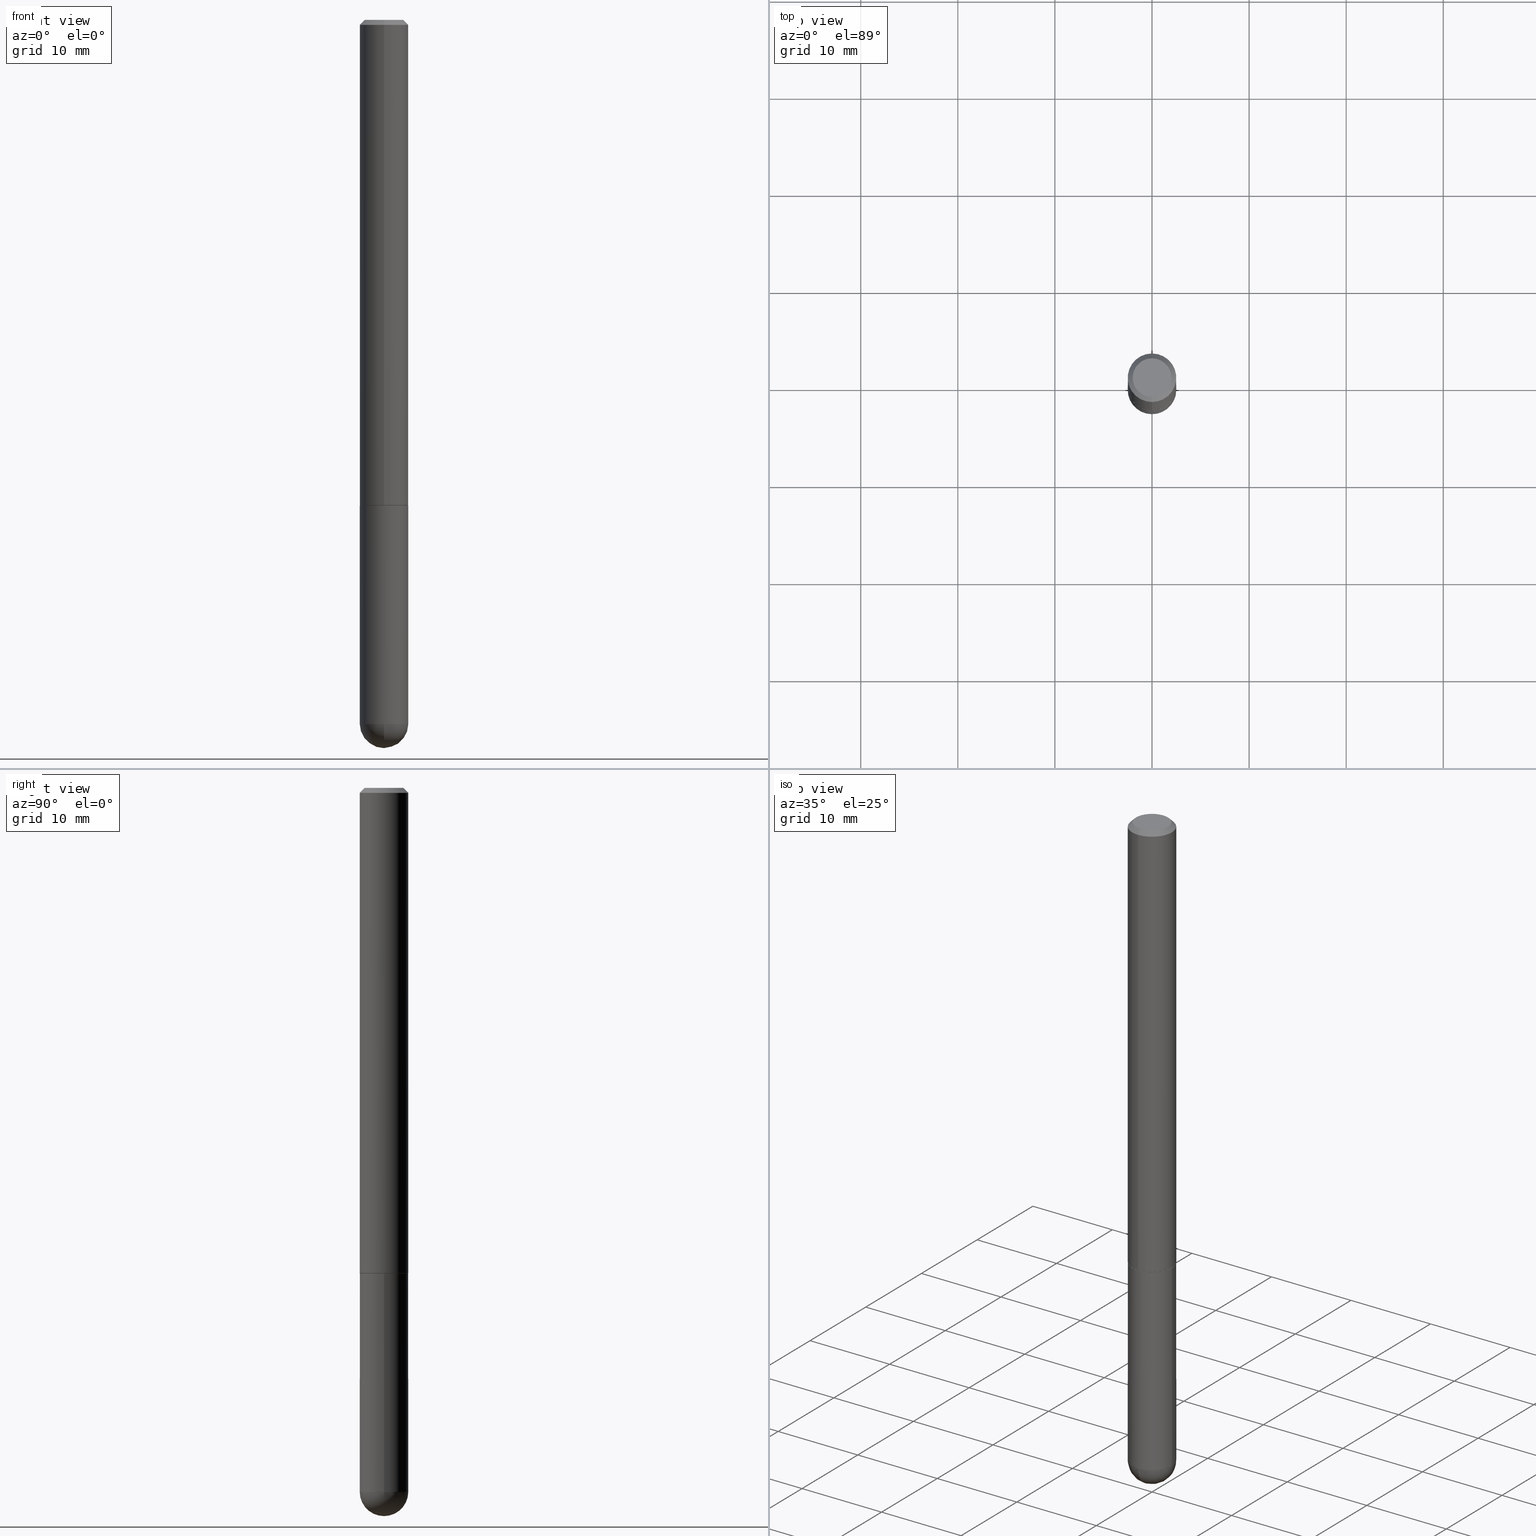
[diagram: canonical four-view strip — front | top / right | iso, engineering-drawing reading convention]
A machine part, canonical four-view strip (front | top / right | iso — engineering-drawing reading convention). The complete STEP part file that produces these views, byte-faithful:
ISO-10303-21;
HEADER;
FILE_DESCRIPTION (( 'STEP AP203' ),
    '1' );
FILE_NAME ('49508.STEP',
    '2024-04-10T12:10:27',
    ( '' ),
    ( '' ),
    'SwSTEP 2.0',
    'SolidWorks 2023',
    '' );
FILE_SCHEMA (( 'CONFIG_CONTROL_DESIGN' ));
ENDSEC;

DATA;
#1 = DIRECTION ( 'NONE',  ( 1.000000000000000000, -6.982962677686265922E-15, 0.000000000000000000 ) ) ;
#2 = AXIS2_PLACEMENT_3D ( 'NONE', #328, #44, #176 ) ;
#3 = EDGE_CURVE ( 'NONE', #319, #5, #100, .T. ) ;
#4 = PRODUCT ( '49508', '49508', '', ( #183 ) ) ;
#5 = VERTEX_POINT ( 'NONE', #138 ) ;
#6 = FACE_OUTER_BOUND ( 'NONE', #373, .T. ) ;
#7 = ORIENTED_EDGE ( 'NONE', *, *, #412, .T. ) ;
#8 = CIRCLE ( 'NONE', #395, 0.09844999999999998197 ) ;
#9 = CC_DESIGN_APPROVAL ( #259, ( #240 ) ) ;
#10 = ADVANCED_FACE ( 'NONE', ( #11 ), #140, .F. ) ;
#11 = FACE_OUTER_BOUND ( 'NONE', #325, .T. ) ;
#12 = LINE ( 'NONE', #142, #255 ) ;
#13 = APPLICATION_CONTEXT ( 'configuration controlled 3d designs of mechanical parts and assemblies' ) ;
#14 = LINE ( 'NONE', #232, #374 ) ;
#15 = ORIENTED_EDGE ( 'NONE', *, *, #156, .T. ) ;
#16 = DIRECTION ( 'NONE',  ( -4.851104656540958753E-15, -0.7071067811865492381, -0.7071067811865457964 ) ) ;
#17 = APPROVAL_ROLE ( '' ) ;
#18 = AXIS2_PLACEMENT_3D ( 'NONE', #332, #50, #297 ) ;
#19 = AXIS2_PLACEMENT_3D ( 'NONE', #347, #63, #199 ) ;
#20 = DIRECTION ( 'NONE',  ( -6.982962677686265922E-15, -1.000000000000000000, 3.476423852899335483E-15 ) ) ;
#21 = CALENDAR_DATE ( 2024, 10, 4 ) ;
#22 = DIRECTION ( 'NONE',  ( 2.455983392421677748E-29, -3.476423852899335483E-15, -1.000000000000000000 ) ) ;
#23 = VERTEX_POINT ( 'NONE', #264 ) ;
#24 = AXIS2_PLACEMENT_3D ( 'NONE', #277, #126, #246 ) ;
#25 = VERTEX_POINT ( 'NONE', #204 ) ;
#26 = DIRECTION ( 'NONE',  ( -2.455983392421677748E-29, 3.476423852899335483E-15, 1.000000000000000000 ) ) ;
#27 = FACE_OUTER_BOUND ( 'NONE', #179, .T. ) ;
#28 = CC_DESIGN_DATE_AND_TIME_ASSIGNMENT ( #378, #163, ( #104 ) ) ;
#29 = ORIENTED_EDGE ( 'NONE', *, *, #285, .T. ) ;
#30 = SHAPE_DEFINITION_REPRESENTATION ( #290, #198 ) ;
#31 = VERTEX_POINT ( 'NONE', #361 ) ;
#32 = APPROVAL_STATUS ( 'not_yet_approved' ) ;
#33 = ORIENTED_EDGE ( 'NONE', *, *, #203, .F. ) ;
#34 = CARTESIAN_POINT ( 'NONE',  ( 4.813905344975440714E-29, -6.872981015512730918E-15, -1.968499999999999694 ) ) ;
#35 = EDGE_LOOP ( 'NONE', ( #114, #354, #62, #194 ) ) ;
#36 = PERSON_AND_ORGANIZATION_ROLE ( 'creator' ) ;
#37 = CC_DESIGN_PERSON_AND_ORGANIZATION_ASSIGNMENT ( #159, #253, ( #46 ) ) ;
#38 = VERTEX_POINT ( 'NONE', #391 ) ;
#39 = AXIS2_PLACEMENT_3D ( 'NONE', #157, #123, #400 ) ;
#40 = LOCAL_TIME ( 8, 10, 27.00000000000000000, #146 ) ;
#41 = DIRECTION ( 'NONE',  ( -2.455983392421678028E-29, 3.476423852899335089E-15, 1.000000000000000000 ) ) ;
#42 = EDGE_CURVE ( 'NONE', #210, #241, #254, .T. ) ;
#43 = DIRECTION ( 'NONE',  ( -6.982962677686265133E-15, -1.000000000000000000, 3.468572871589974153E-15 ) ) ;
#44 = DIRECTION ( 'NONE',  ( 2.438088387897960049E-29, -3.491481338843145188E-15, -1.000000000000000000 ) ) ;
#45 = AXIS2_PLACEMENT_3D ( 'NONE', #291, #231, #358 ) ;
#46 = PRODUCT_DEFINITION_FORMATION_WITH_SPECIFIED_SOURCE ( 'ANY', '', #4, .NOT_KNOWN. ) ;
#47 = CARTESIAN_POINT ( 'NONE',  ( 4.834603307982072129E-29, -6.843340354432340841E-15, -1.968499999999999694 ) ) ;
#48 = DIRECTION ( 'NONE',  ( -6.982962677686266711E-15, -1.000000000000000000, 2.803332984776053820E-15 ) ) ;
#49 = APPROVAL_STATUS ( 'not_yet_approved' ) ;
#50 = DIRECTION ( 'NONE',  ( -2.455983392421677748E-29, 3.476423852899335483E-15, 1.000000000000000000 ) ) ;
#51 = CARTESIAN_POINT ( 'NONE',  ( -0.09844999999999999585, -7.719916064164011895E-15, -1.968499999999999694 ) ) ;
#52 = CIRCLE ( 'NONE', #109, 0.09844999999999998197 ) ;
#53 = DIRECTION ( 'NONE',  ( -6.982962677686266711E-15, -1.000000000000000000, 2.803332984776053820E-15 ) ) ;
#54 = EDGE_LOOP ( 'NONE', ( #227, #359, #222, #160 ) ) ;
#55 = DIRECTION ( 'NONE',  ( -7.105427357601001070E-15, -1.000000000000000000, 0.000000000000000000 ) ) ;
#56 = EDGE_CURVE ( 'NONE', #25, #144, #327, .T. ) ;
#57 = EDGE_CURVE ( 'NONE', #25, #319, #286, .T. ) ;
#58 = DIRECTION ( 'NONE',  ( -2.455983392421677748E-29, 3.476423852899335483E-15, 1.000000000000000000 ) ) ;
#59 = VECTOR ( 'NONE', #41, 39.37007874015748143 ) ;
#60 = AXIS2_PLACEMENT_3D ( 'NONE', #392, #214, #55 ) ;
#61 = PERSON_AND_ORGANIZATION ( #299, #262 ) ;
#62 = ORIENTED_EDGE ( 'NONE', *, *, #57, .F. ) ;
#63 = DIRECTION ( 'NONE',  ( -1.000000000000000000, 6.982962677686265922E-15, -4.883557194083112340E-29 ) ) ;
#64 = DATE_AND_TIME ( #158, #258 ) ;
#65 = ORIENTED_EDGE ( 'NONE', *, *, #289, .F. ) ;
#66 = PERSON_AND_ORGANIZATION_ROLE ( 'classification_officer' ) ;
#67 = DIRECTION ( 'NONE',  ( -2.455983392421677748E-29, 3.476423852899335483E-15, 1.000000000000000000 ) ) ;
#68 = ORIENTED_EDGE ( 'NONE', *, *, #292, .F. ) ;
#69 = APPROVAL ( #49, 'UNSPECIFIED' ) ;
#70 = AXIS2_PLACEMENT_3D ( 'NONE', #321, #167, #106 ) ;
#71 = EDGE_CURVE ( 'NONE', #23, #144, #14, .T. ) ;
#72 = CARTESIAN_POINT ( 'NONE',  ( 4.911966784843361661E-31, -6.952847705798678460E-17, -0.02000000000000002470 ) ) ;
#73 = DIRECTION ( 'NONE',  ( -2.445468806185136597E-29, 3.491481338843145583E-15, 1.000000000000000000 ) ) ;
#74 = FACE_OUTER_BOUND ( 'NONE', #162, .T. ) ;
#75 = ADVANCED_FACE ( 'NONE', ( #267 ), #113, .T. ) ;
#76 = CARTESIAN_POINT ( 'NONE',  ( -6.874726756182134475E-16, -0.09845000000000007911, 3.422539283179398691E-16 ) ) ;
#77 = AXIS2_PLACEMENT_3D ( 'NONE', #306, #22, #90 ) ;
#78 = ORIENTED_EDGE ( 'NONE', *, *, #250, .F. ) ;
#79 = APPROVAL_PERSON_ORGANIZATION ( #220, #259, #191 ) ;
#80 = FACE_OUTER_BOUND ( 'NONE', #54, .T. ) ;
#81 = CARTESIAN_POINT ( 'NONE',  ( 0.000000000000000000, 0.000000000000000000, 0.000000000000000000 ) ) ;
#82 = CARTESIAN_POINT ( 'NONE',  ( 6.874726756182131517E-16, 0.09844999999999991258, -0.02000000000000036818 ) ) ;
#83 = ORIENTED_EDGE ( 'NONE', *, *, #42, .F. ) ;
#84 = CARTESIAN_POINT ( 'NONE',  ( 6.894070069048070960E-29, -1.077780014160728605E-14, -2.952799999999999869 ) ) ;
#85 = DIRECTION ( 'NONE',  ( -6.982962677686265133E-15, -1.000000000000000000, 2.774858297271973248E-15 ) ) ;
#86 = DIRECTION ( 'NONE',  ( 1.000000000000000000, -6.982962677686265922E-15, 4.883557194083112340E-29 ) ) ;
#87 = ADVANCED_FACE ( 'NONE', ( #80 ), #404, .T. ) ;
#88 = PRODUCT_RELATED_PRODUCT_CATEGORY ( 'detail', '', ( #4 ) ) ;
#89 = ORIENTED_EDGE ( 'NONE', *, *, #322, .F. ) ;
#90 = DIRECTION ( 'NONE',  ( 6.982962677686265133E-15, 1.000000000000000000, -3.468572871589974153E-15 ) ) ;
#91 = DIRECTION ( 'NONE',  ( 6.982962677686266711E-15, 1.000000000000000000, 0.000000000000000000 ) ) ;
#92 = ORIENTED_EDGE ( 'NONE', *, *, #407, .F. ) ;
#93 = SPHERICAL_SURFACE ( 'NONE', #19, 0.09845000000000030116 ) ;
#94 = CALENDAR_DATE ( 2024, 10, 4 ) ;
#95 = FACE_OUTER_BOUND ( 'NONE', #293, .T. ) ;
#96 = CC_DESIGN_PERSON_AND_ORGANIZATION_ASSIGNMENT ( #317, #36, ( #104 ) ) ;
#97 = APPROVAL_ROLE ( '' ) ;
#98 = ORIENTED_EDGE ( 'NONE', *, *, #407, .T. ) ;
#99 = ORIENTED_EDGE ( 'NONE', *, *, #168, .T. ) ;
#100 = LINE ( 'NONE', #229, #294 ) ;
#101 = CIRCLE ( 'NONE', #281, 0.09844999999999999585 ) ;
#102 = EDGE_CURVE ( 'NONE', #38, #25, #108, .T. ) ;
#103 = EDGE_LOOP ( 'NONE', ( #326, #105, #226, #218 ) ) ;
#104 = PRODUCT_DEFINITION ( 'UNKNOWN', '', #46, #221 ) ;
#105 = ORIENTED_EDGE ( 'NONE', *, *, #223, .T. ) ;
#106 = DIRECTION ( 'NONE',  ( -6.982962677686265133E-15, -1.000000000000000000, 3.468572871589974153E-15 ) ) ;
#107 = ADVANCED_FACE ( 'NONE', ( #304 ), #208, .T. ) ;
#108 = LINE ( 'NONE', #180, #131 ) ;
#109 = AXIS2_PLACEMENT_3D ( 'NONE', #72, #387, #43 ) ;
#110 = CC_DESIGN_PERSON_AND_ORGANIZATION_ASSIGNMENT ( #375, #66, ( #240 ) ) ;
#111 = CARTESIAN_POINT ( 'NONE',  ( 6.980223886934544207E-29, -9.965909759526929881E-15, -2.854349999999999721 ) ) ;
#112 = ORIENTED_EDGE ( 'NONE', *, *, #285, .F. ) ;
#113 = CYLINDRICAL_SURFACE ( 'NONE', #184, 0.09844999999999998197 ) ;
#114 = ORIENTED_EDGE ( 'NONE', *, *, #172, .T. ) ;
#115 = DIRECTION ( 'NONE',  ( -2.455983392421677748E-29, 3.476423852899335089E-15, 1.000000000000000000 ) ) ;
#116 = ORIENTED_EDGE ( 'NONE', *, *, #122, .T. ) ;
#117 = DIRECTION ( 'NONE',  ( -6.982962677686265922E-15, -1.000000000000000000, 3.476423852899335089E-15 ) ) ;
#118 = DIRECTION ( 'NONE',  ( 1.000000000000000000, -6.982962677686266711E-15, 4.876176775795935793E-29 ) ) ;
#119 = DIRECTION ( 'NONE',  ( -2.455983392421677748E-29, 3.476423852899335483E-15, 1.000000000000000000 ) ) ;
#120 = CYLINDRICAL_SURFACE ( 'NONE', #185, 0.09844999999999998197 ) ;
#121 = ORIENTED_EDGE ( 'NONE', *, *, #203, .T. ) ;
#122 = EDGE_CURVE ( 'NONE', #234, #206, #344, .T. ) ;
#123 = DIRECTION ( 'NONE',  ( 2.455983392421677748E-29, -3.476423852899335483E-15, -1.000000000000000000 ) ) ;
#124 = LOCAL_TIME ( 8, 10, 27.00000000000000000, #192 ) ;
#125 = ORIENTED_EDGE ( 'NONE', *, *, #338, .T. ) ;
#126 = DIRECTION ( 'NONE',  ( -2.455983392421677748E-29, 3.476423852899335483E-15, 1.000000000000000000 ) ) ;
#127 = CARTESIAN_POINT ( 'NONE',  ( 0.000000000000000000, 0.000000000000000000, 0.000000000000000000 ) ) ;
#128 = EDGE_LOOP ( 'NONE', ( #68, #393, #362, #252 ) ) ;
#129 = PERSON_AND_ORGANIZATION ( #299, #262 ) ;
#130 = DIRECTION ( 'NONE',  ( -6.982962677686265133E-15, -1.000000000000000000, 3.476423852899335877E-15 ) ) ;
#131 = VECTOR ( 'NONE', #235, 39.37007874015748143 ) ;
#132 = VECTOR ( 'NONE', #371, 39.37007874015748143 ) ;
#133 = DATE_AND_TIME ( #278, #383 ) ;
#134 = EDGE_CURVE ( 'NONE', #31, #38, #324, .T. ) ;
#135 = AXIS2_PLACEMENT_3D ( 'NONE', #201, #115, #117 ) ;
#136 = AXIS2_PLACEMENT_3D ( 'NONE', #353, #67, #130 ) ;
#137 = LOCAL_TIME ( 8, 10, 27.00000000000000000, #313 ) ;
#138 = CARTESIAN_POINT ( 'NONE',  ( 6.874726756182131517E-16, 0.09844999999999991258, -0.02000000000000036818 ) ) ;
#139 = DIMENSIONAL_EXPONENTS ( 1.000000000000000000, 0.000000000000000000, 0.000000000000000000, 0.000000000000000000, 0.000000000000000000, 0.000000000000000000, 0.000000000000000000 ) ;
#140 = PLANE ( 'NONE',  #135 ) ;
#141 = DIRECTION ( 'NONE',  ( -2.455983392421677748E-29, 3.476423852899335483E-15, 1.000000000000000000 ) ) ;
#142 = CARTESIAN_POINT ( 'NONE',  ( 0.09844999999999998197, -6.874726756182128559E-16, 4.800596035771097813E-30 ) ) ;
#143 = DIRECTION ( 'NONE',  ( -2.455983392421678028E-29, 3.476423852899335089E-15, 1.000000000000000000 ) ) ;
#144 = VERTEX_POINT ( 'NONE', #242 ) ;
#145 = CARTESIAN_POINT ( 'NONE',  ( 6.649104109020657960E-29, -1.044009212766698018E-14, -2.854349999999999721 ) ) ;
#146 = COORDINATED_UNIVERSAL_TIME_OFFSET ( 5, 0, .BEHIND. ) ;
#147 = AXIS2_PLACEMENT_3D ( 'NONE', #385, #394, #301 ) ;
#148 = AXIS2_PLACEMENT_3D ( 'NONE', #182, #357, #356 ) ;
#149 = CARTESIAN_POINT ( 'NONE',  ( 0.000000000000000000, 0.000000000000000000, 0.000000000000000000 ) ) ;
#150 = DIRECTION ( 'NONE',  ( -2.445468806185136877E-29, 3.491481338843145188E-15, 1.000000000000000000 ) ) ;
#151 = ADVANCED_FACE ( 'NONE', ( #6 ), #265, .T. ) ;
#152 = CARTESIAN_POINT ( 'NONE',  ( 4.813905344975440714E-29, -6.872981015512730918E-15, -1.968499999999999694 ) ) ;
#153 = APPLICATION_PROTOCOL_DEFINITION ( 'international standard', 'config_control_design', 1994, #384 ) ;
#154 = PERSON_AND_ORGANIZATION ( #299, #262 ) ;
#155 = CONICAL_SURFACE ( 'NONE', #39, 0.09844999999999998197, 0.7853981633974472798 ) ;
#156 = EDGE_CURVE ( 'NONE', #5, #144, #52, .T. ) ;
#157 = CARTESIAN_POINT ( 'NONE',  ( 4.911966784843361661E-31, -6.952847705798678460E-17, -0.02000000000000002470 ) ) ;
#158 = CALENDAR_DATE ( 2024, 10, 4 ) ;
#159 = PERSON_AND_ORGANIZATION ( #299, #262 ) ;
#160 = ORIENTED_EDGE ( 'NONE', *, *, #223, .F. ) ;
#161 = AXIS2_PLACEMENT_3D ( 'NONE', #342, #119, #190 ) ;
#162 = EDGE_LOOP ( 'NONE', ( #121, #29 ) ) ;
#163 = DATE_TIME_ROLE ( 'creation_date' ) ;
#164 = DIRECTION ( 'NONE',  ( -2.445468806185136597E-29, 3.491481338843145583E-15, 1.000000000000000000 ) ) ;
#165 = EDGE_CURVE ( 'NONE', #241, #234, #200, .T. ) ;
#166 = VERTEX_POINT ( 'NONE', #175 ) ;
#167 = DIRECTION ( 'NONE',  ( -2.455983392421677748E-29, 3.476423852899335483E-15, 1.000000000000000000 ) ) ;
#168 = EDGE_CURVE ( 'NONE', #206, #210, #8, .T. ) ;
#169 = AXIS2_PLACEMENT_3D ( 'NONE', #312, #366, #85 ) ;
#170 = ORIENTED_EDGE ( 'NONE', *, *, #172, .F. ) ;
#171 = DIRECTION ( 'NONE',  ( -2.445468806185136877E-29, 3.491481338843145188E-15, 1.000000000000000000 ) ) ;
#172 = EDGE_CURVE ( 'NONE', #38, #31, #399, .T. ) ;
#173 = CARTESIAN_POINT ( 'NONE',  ( 4.834603307982072129E-29, -6.843340354432340841E-15, -1.968499999999999694 ) ) ;
#174 = AXIS2_PLACEMENT_3D ( 'NONE', #145, #363, #397 ) ;
#175 = CARTESIAN_POINT ( 'NONE',  ( 6.176430488413512340E-16, 0.07845000000000024176, -5.214804354580695046E-16 ) ) ;
#176 = DIRECTION ( 'NONE',  ( -1.000000000000000000, 6.982962677686265922E-15, -4.876176775795935793E-29 ) ) ;
#177 = ADVANCED_FACE ( 'NONE', ( #309 ), #369, .T. ) ;
#178 = DIRECTION ( 'NONE',  ( 1.000000000000000000, -6.982962677686276177E-15, 0.000000000000000000 ) ) ;
#179 = EDGE_LOOP ( 'NONE', ( #381, #99, #188, #408, #112 ) ) ;
#180 = CARTESIAN_POINT ( 'NONE',  ( -6.804897129404779322E-16, -0.09745000000000680895, -1.968499999999999472 ) ) ;
#181 = CARTESIAN_POINT ( 'NONE',  ( 0.09844999999999999585, -7.560453691130944267E-15, -1.968499999999999694 ) ) ;
#182 = CARTESIAN_POINT ( 'NONE',  ( 4.834603307982072129E-29, -6.843340354432340841E-15, -1.968499999999999694 ) ) ;
#183 = MECHANICAL_CONTEXT ( 'NONE', #384, 'mechanical' ) ;
#184 = AXIS2_PLACEMENT_3D ( 'NONE', #81, #238, #207 ) ;
#185 = AXIS2_PLACEMENT_3D ( 'NONE', #127, #217, #118 ) ;
#186 = CC_DESIGN_PERSON_AND_ORGANIZATION_ASSIGNMENT ( #61, #350, ( #46 ) ) ;
#187 = FACE_OUTER_BOUND ( 'NONE', #128, .T. ) ;
#188 = ORIENTED_EDGE ( 'NONE', *, *, #42, .T. ) ;
#189 = AXIS2_PLACEMENT_3D ( 'NONE', #411, #280, #233 ) ;
#190 = DIRECTION ( 'NONE',  ( -6.982962677686266711E-15, -1.000000000000000000, 2.803332984776053820E-15 ) ) ;
#191 = APPROVAL_ROLE ( '' ) ;
#192 = COORDINATED_UNIVERSAL_TIME_OFFSET ( 5, 0, .BEHIND. ) ;
#193 = DATE_AND_TIME ( #94, #124 ) ;
#194 = ORIENTED_EDGE ( 'NONE', *, *, #102, .F. ) ;
#195 = ADVANCED_FACE ( 'NONE', ( #401 ), #261, .T. ) ;
#196 = AXIS2_PLACEMENT_3D ( 'NONE', #212, #302, #247 ) ;
#197 = CC_DESIGN_APPROVAL ( #69, ( #104 ) ) ;
#198 = ADVANCED_BREP_SHAPE_REPRESENTATION ( '49508', ( #305, #308, #196 ), #368 ) ;
#199 = DIRECTION ( 'NONE',  ( 6.982962677686265922E-15, 1.000000000000000000, -5.549716594543940975E-15 ) ) ;
#200 = CIRCLE ( 'NONE', #376, 0.09844999999999998197 ) ;
#201 = CARTESIAN_POINT ( 'NONE',  ( 4.834603307982072129E-29, -6.843340354432340841E-15, -1.968499999999999694 ) ) ;
#202 = DIRECTION ( 'NONE',  ( 1.000000000000000000, -6.982962677686276177E-15, 0.000000000000000000 ) ) ;
#203 = EDGE_CURVE ( 'NONE', #379, #388, #101, .T. ) ;
#204 = CARTESIAN_POINT ( 'NONE',  ( -6.874726756181660173E-16, -0.09845000000000704576, -1.967499999999999361 ) ) ;
#205 = CC_DESIGN_PERSON_AND_ORGANIZATION_ASSIGNMENT ( #154, #251, ( #4 ) ) ;
#206 = VERTEX_POINT ( 'NONE', #216 ) ;
#207 = DIRECTION ( 'NONE',  ( 1.000000000000000000, -6.982962677686266711E-15, 4.876176775795935793E-29 ) ) ;
#208 = SPHERICAL_SURFACE ( 'NONE', #174, 0.09845000000000030116 ) ;
#209 = LINE ( 'NONE', #243, #406 ) ;
#210 = VERTEX_POINT ( 'NONE', #271 ) ;
#211 = FACE_OUTER_BOUND ( 'NONE', #35, .T. ) ;
#212 = CARTESIAN_POINT ( 'NONE',  ( 0.000000000000000000, 0.000000000000000000, 0.000000000000000000 ) ) ;
#213 = LENGTH_MEASURE_WITH_UNIT ( LENGTH_MEASURE( 0.02539999999999999897 ), #334 );
#214 = DIRECTION ( 'NONE',  ( -1.000000000000000000, 7.105427357601001070E-15, -4.926315508542082329E-29 ) ) ;
#215 = ADVANCED_FACE ( 'NONE', ( #211 ), #219, .T. ) ;
#216 = CARTESIAN_POINT ( 'NONE',  ( -0.09844999999999998197, -7.719916064164013473E-15, -2.854349999999999721 ) ) ;
#217 = DIRECTION ( 'NONE',  ( -2.445468806185136597E-29, 3.491481338843145583E-15, 1.000000000000000000 ) ) ;
#218 = ORIENTED_EDGE ( 'NONE', *, *, #156, .F. ) ;
#219 = CONICAL_SURFACE ( 'NONE', #161, 0.09744999999999995333, 0.7853981633975336552 ) ;
#220 = PERSON_AND_ORGANIZATION ( #299, #262 ) ;
#221 = DESIGN_CONTEXT ( 'detailed design', #13, 'design' ) ;
#222 = ORIENTED_EDGE ( 'NONE', *, *, #102, .T. ) ;
#223 = EDGE_CURVE ( 'NONE', #319, #25, #329, .T. ) ;
#224 = COORDINATED_UNIVERSAL_TIME_OFFSET ( 5, 0, .BEHIND. ) ;
#225 = ORIENTED_EDGE ( 'NONE', *, *, #165, .T. ) ;
#226 = ORIENTED_EDGE ( 'NONE', *, *, #56, .T. ) ;
#227 = ORIENTED_EDGE ( 'NONE', *, *, #365, .F. ) ;
#228 = UNCERTAINTY_MEASURE_WITH_UNIT (LENGTH_MEASURE( 1.000000000000000082E-05 ), #310, 'distance_accuracy_value', 'NONE');
#229 = CARTESIAN_POINT ( 'NONE',  ( 6.995293233558190965E-16, 0.09845000000000007911, -3.422539283179398691E-16 ) ) ;
#230 = ORIENTED_EDGE ( 'NONE', *, *, #168, .F. ) ;
#231 = DIRECTION ( 'NONE',  ( -2.445468806185136597E-29, 3.491481338843145583E-15, 1.000000000000000000 ) ) ;
#232 = CARTESIAN_POINT ( 'NONE',  ( -6.754160278806065167E-16, -0.09845000000000005136, -0.01999999999999968470 ) ) ;
#233 = DIRECTION ( 'NONE',  ( 6.982962677686265922E-15, 1.000000000000000000, -3.476423852899335089E-15 ) ) ;
#234 = VERTEX_POINT ( 'NONE', #336 ) ;
#235 = DIRECTION ( 'NONE',  ( -4.937700262164969294E-15, -0.7071067811866054154, 0.7071067811864896191 ) ) ;
#236 = ORIENTED_EDGE ( 'NONE', *, *, #56, .F. ) ;
#237 = AXIS2_PLACEMENT_3D ( 'NONE', #333, #260, #263 ) ;
#238 = DIRECTION ( 'NONE',  ( -2.445468806185136597E-29, 3.491481338843145583E-15, 1.000000000000000000 ) ) ;
#239 = PLANE ( 'NONE',  #2 ) ;
#240 = SECURITY_CLASSIFICATION ( '', '', #279 ) ;
#241 = VERTEX_POINT ( 'NONE', #274 ) ;
#242 = CARTESIAN_POINT ( 'NONE',  ( -6.754160278806065167E-16, -0.09845000000000005136, -0.01999999999999968470 ) ) ;
#243 = CARTESIAN_POINT ( 'NONE',  ( -0.09844999999999998197, 6.995293233558185049E-16, -4.842691596355953341E-30 ) ) ;
#244 = ADVANCED_FACE ( 'NONE', ( #187 ), #155, .T. ) ;
#245 = CARTESIAN_POINT ( 'NONE',  ( 6.649104109020657960E-29, -1.044009212766698018E-14, -2.854349999999999721 ) ) ;
#246 = DIRECTION ( 'NONE',  ( -6.982962677686265133E-15, -1.000000000000000000, 3.476423852899335877E-15 ) ) ;
#247 = DIRECTION ( 'NONE',  ( 1.000000000000000000, 0.000000000000000000, 0.000000000000000000 ) ) ;
#248 = FACE_OUTER_BOUND ( 'NONE', #318, .T. ) ;
#249 = CARTESIAN_POINT ( 'NONE',  ( 6.924238959982656172E-16, 0.09744999999999311158, -1.968500000000000139 ) ) ;
#250 = EDGE_CURVE ( 'NONE', #166, #23, #382, .T. ) ;
#251 = PERSON_AND_ORGANIZATION_ROLE ( 'design_owner' ) ;
#252 = ORIENTED_EDGE ( 'NONE', *, *, #389, .F. ) ;
#253 = PERSON_AND_ORGANIZATION_ROLE ( 'design_supplier' ) ;
#254 = CIRCLE ( 'NONE', #147, 0.09844999999999998197 ) ;
#255 = VECTOR ( 'NONE', #171, 39.37007874015748143 ) ;
#256 = CALENDAR_DATE ( 2024, 10, 4 ) ;
#257 = CIRCLE ( 'NONE', #70, 0.09844999999999998197 ) ;
#258 = LOCAL_TIME ( 8, 10, 27.00000000000000000, #224 ) ;
#259 = APPROVAL ( #32, 'UNSPECIFIED' ) ;
#260 = DIRECTION ( 'NONE',  ( -2.455983392421677748E-29, 3.476423852899335483E-15, 1.000000000000000000 ) ) ;
#261 = CONICAL_SURFACE ( 'NONE', #77, 0.09844999999999998197, 0.7853981633974472798 ) ;
#262 = ORGANIZATION ( 'UNSPECIFIED', 'UNSPECIFIED', '' ) ;
#263 = DIRECTION ( 'NONE',  ( -6.982962677686265922E-15, -1.000000000000000000, 3.476423852899335483E-15 ) ) ;
#264 = CARTESIAN_POINT ( 'NONE',  ( -6.068110479028924671E-16, -0.07845000000000024176, 2.397046706183794315E-17 ) ) ;
#265 = CYLINDRICAL_SURFACE ( 'NONE', #237, 0.09845000000000007911 ) ;
#266 = AXIS2_PLACEMENT_3D ( 'NONE', #34, #164, #1 ) ;
#267 = FACE_OUTER_BOUND ( 'NONE', #402, .T. ) ;
#268 = DATE_AND_TIME ( #21, #40 ) ;
#269 = DIRECTION ( 'NONE',  ( 1.000000000000000000, -6.982962677686265922E-15, 0.000000000000000000 ) ) ;
#270 = APPLICATION_PROTOCOL_DEFINITION ( 'international standard', 'config_control_design', 1994, #13 ) ;
#271 = CARTESIAN_POINT ( 'NONE',  ( -6.995293233557512545E-16, -0.09845000000001033480, -2.854349999999998833 ) ) ;
#272 = ORIENTED_EDGE ( 'NONE', *, *, #250, .T. ) ;
#273 = ADVANCED_FACE ( 'NONE', ( #248 ), #93, .T. ) ;
#274 = CARTESIAN_POINT ( 'NONE',  ( 0.09844999999999998197, -9.106918063138045721E-15, -2.854349999999999721 ) ) ;
#275 =( NAMED_UNIT ( * ) PLANE_ANGLE_UNIT ( ) SI_UNIT ( $, .RADIAN. ) );
#276 = CC_DESIGN_DATE_AND_TIME_ASSIGNMENT ( #193, #409, ( #240 ) ) ;
#277 = CARTESIAN_POINT ( 'NONE',  ( 6.109381099726892586E-45, -8.647777605939269895E-31, -2.487549841981157792E-16 ) ) ;
#278 = CALENDAR_DATE ( 2024, 10, 4 ) ;
#279 = SECURITY_CLASSIFICATION_LEVEL ( 'unclassified' ) ;
#280 = DIRECTION ( 'NONE',  ( 2.455983392421677748E-29, -3.476423852899335089E-15, -1.000000000000000000 ) ) ;
#281 = AXIS2_PLACEMENT_3D ( 'NONE', #152, #340, #269 ) ;
#282 = APPROVAL_DATE_TIME ( #268, #69 ) ;
#283 = ORIENTED_EDGE ( 'NONE', *, *, #71, .F. ) ;
#284 = ORIENTED_EDGE ( 'NONE', *, *, #389, .T. ) ;
#285 = EDGE_CURVE ( 'NONE', #388, #379, #360, .T. ) ;
#286 = CIRCLE ( 'NONE', #18, 0.09845000000000020401 ) ;
#287 = CIRCLE ( 'NONE', #335, 0.09845000000000030116 ) ;
#288 = APPROVAL_PERSON_ORGANIZATION ( #129, #403, #97 ) ;
#289 = EDGE_CURVE ( 'NONE', #144, #5, #257, .T. ) ;
#290 = PRODUCT_DEFINITION_SHAPE ( 'NONE', 'NONE',  #104 ) ;
#291 = CARTESIAN_POINT ( 'NONE',  ( 6.980223886934544207E-29, -9.965909759526929881E-15, -2.854349999999999721 ) ) ;
#292 = EDGE_CURVE ( 'NONE', #23, #166, #311, .T. ) ;
#293 = EDGE_LOOP ( 'NONE', ( #272, #380 ) ) ;
#294 = VECTOR ( 'NONE', #143, 39.37007874015748143 ) ;
#295 = CARTESIAN_POINT ( 'NONE',  ( 6.980223886934544207E-29, -9.965909759526929881E-15, -2.854349999999999721 ) ) ;
#296 = CARTESIAN_POINT ( 'NONE',  ( 6.995293233558439456E-16, 0.09844999999999334839, -1.967500000000000027 ) ) ;
#297 = DIRECTION ( 'NONE',  ( -6.982962677686265133E-15, -1.000000000000000000, 2.774858297271973248E-15 ) ) ;
#298 = EDGE_LOOP ( 'NONE', ( #316, #98, #339, #83 ) ) ;
#299 = PERSON ( 'UNSPECIFIED', 'UNSPECIFIED', 'UNSPECIFIED', ('UNSPECIFIED'), ('UNSPECIFIED'), ('UNSPECIFIED') ) ;
#300 = ADVANCED_FACE ( 'NONE', ( #95 ), #349, .F. ) ;
#301 = DIRECTION ( 'NONE',  ( 1.000000000000000000, -6.982962677686276177E-15, 0.000000000000000000 ) ) ;
#302 = DIRECTION ( 'NONE',  ( 0.000000000000000000, 0.000000000000000000, 1.000000000000000000 ) ) ;
#303 = CIRCLE ( 'NONE', #60, 0.09845000000000030116 ) ;
#304 = FACE_OUTER_BOUND ( 'NONE', #298, .T. ) ;
#305 = MANIFOLD_SOLID_BREP ( 'Body-Move/Copy2[1]', #355 ) ;
#306 = CARTESIAN_POINT ( 'NONE',  ( 4.911966784843361661E-31, -6.952847705798678460E-17, -0.02000000000000002470 ) ) ;
#307 = ADVANCED_FACE ( 'NONE', ( #74 ), #239, .F. ) ;
#308 = MANIFOLD_SOLID_BREP ( 'Body-Move/Copy2[2]', #323 ) ;
#309 = FACE_OUTER_BOUND ( 'NONE', #103, .T. ) ;
#310 =( CONVERSION_BASED_UNIT ( 'INCH', #213 ) LENGTH_UNIT ( ) NAMED_UNIT ( #139 ) );
#311 = CIRCLE ( 'NONE', #136, 0.07845000000000024176 ) ;
#312 = CARTESIAN_POINT ( 'NONE',  ( 4.832147324589650168E-29, -6.839863930579441172E-15, -1.967499999999999805 ) ) ;
#313 = COORDINATED_UNIVERSAL_TIME_OFFSET ( 5, 0, .BEHIND. ) ;
#314 = APPROVAL_DATE_TIME ( #64, #403 ) ;
#315 = EDGE_LOOP ( 'NONE', ( #283, #78, #284, #15 ) ) ;
#316 = ORIENTED_EDGE ( 'NONE', *, *, #338, .F. ) ;
#317 = PERSON_AND_ORGANIZATION ( #299, #262 ) ;
#318 = EDGE_LOOP ( 'NONE', ( #92, #125, #230, #377 ) ) ;
#319 = VERTEX_POINT ( 'NONE', #296 ) ;
#320 = AXIS2_PLACEMENT_3D ( 'NONE', #149, #26, #20 ) ;
#321 = CARTESIAN_POINT ( 'NONE',  ( 4.911966784843361661E-31, -6.952847705798678460E-17, -0.02000000000000002470 ) ) ;
#322 = EDGE_CURVE ( 'NONE', #241, #379, #12, .T. ) ;
#323 = CLOSED_SHELL ( 'NONE', ( #215, #151, #244, #195, #177, #87, #10, #300 ) ) ;
#324 = CIRCLE ( 'NONE', #148, 0.09744999999999995333 ) ;
#325 = EDGE_LOOP ( 'NONE', ( #170, #331 ) ) ;
#326 = ORIENTED_EDGE ( 'NONE', *, *, #3, .F. ) ;
#327 = LINE ( 'NONE', #76, #59 ) ;
#328 = CARTESIAN_POINT ( 'NONE',  ( 6.874726756182609764E-16, 0.09844999999999311247, -1.968500000000000139 ) ) ;
#329 = CIRCLE ( 'NONE', #169, 0.09845000000000020401 ) ;
#330 = DIRECTION ( 'NONE',  ( -2.445468806185136597E-29, 3.491481338843145583E-15, 1.000000000000000000 ) ) ;
#331 = ORIENTED_EDGE ( 'NONE', *, *, #134, .F. ) ;
#332 = CARTESIAN_POINT ( 'NONE',  ( 4.832147324589650168E-29, -6.839863930579441172E-15, -1.967499999999999805 ) ) ;
#333 = CARTESIAN_POINT ( 'NONE',  ( 0.000000000000000000, 0.000000000000000000, 0.000000000000000000 ) ) ;
#334 =( LENGTH_UNIT ( ) NAMED_UNIT ( * ) SI_UNIT ( $, .METRE. ) );
#335 = AXIS2_PLACEMENT_3D ( 'NONE', #245, #86, #91 ) ;
#336 = CARTESIAN_POINT ( 'NONE',  ( 6.874726756182819798E-16, 0.09844999999998993445, -2.854350000000000165 ) ) ;
#337 = DIRECTION ( 'NONE',  ( 5.024295867788490741E-15, 0.7071067811866103003, 0.7071067811864847341 ) ) ;
#338 = EDGE_CURVE ( 'NONE', #346, #210, #303, .T. ) ;
#339 = ORIENTED_EDGE ( 'NONE', *, *, #165, .F. ) ;
#340 = DIRECTION ( 'NONE',  ( -2.445468806185136597E-29, 3.491481338843145583E-15, 1.000000000000000000 ) ) ;
#341 =( NAMED_UNIT ( * ) SI_UNIT ( $, .STERADIAN. ) SOLID_ANGLE_UNIT ( ) );
#342 = CARTESIAN_POINT ( 'NONE',  ( 4.834603307982072129E-29, -6.843340354432340841E-15, -1.968499999999999694 ) ) ;
#343 = APPROVAL_DATE_TIME ( #133, #259 ) ;
#344 = CIRCLE ( 'NONE', #45, 0.09844999999999998197 ) ;
#345 = CC_DESIGN_SECURITY_CLASSIFICATION ( #240, ( #46 ) ) ;
#346 = VERTEX_POINT ( 'NONE', #84 ) ;
#347 = CARTESIAN_POINT ( 'NONE',  ( 6.649104109020657960E-29, -1.044009212766698018E-14, -2.854349999999999721 ) ) ;
#348 = APPROVAL_STATUS ( 'not_yet_approved' ) ;
#349 = PLANE ( 'NONE',  #189 ) ;
#350 = PERSON_AND_ORGANIZATION_ROLE ( 'creator' ) ;
#351 = VECTOR ( 'NONE', #337, 39.37007874015748143 ) ;
#352 = APPROVAL_PERSON_ORGANIZATION ( #372, #69, #17 ) ;
#353 = CARTESIAN_POINT ( 'NONE',  ( 6.109381099726892586E-45, -8.647777605939269895E-31, -2.487549841981157792E-16 ) ) ;
#354 = ORIENTED_EDGE ( 'NONE', *, *, #365, .T. ) ;
#355 = CLOSED_SHELL ( 'NONE', ( #75, #273, #107, #307, #390 ) ) ;
#356 = DIRECTION ( 'NONE',  ( -6.982962677686266711E-15, -1.000000000000000000, 2.803332984776053820E-15 ) ) ;
#357 = DIRECTION ( 'NONE',  ( -2.455983392421677748E-29, 3.476423852899335483E-15, 1.000000000000000000 ) ) ;
#358 = DIRECTION ( 'NONE',  ( 1.000000000000000000, -6.982962677686276177E-15, 0.000000000000000000 ) ) ;
#359 = ORIENTED_EDGE ( 'NONE', *, *, #134, .T. ) ;
#360 = CIRCLE ( 'NONE', #266, 0.09844999999999999585 ) ;
#361 = CARTESIAN_POINT ( 'NONE',  ( 6.959766096770670088E-16, 0.09744999999999311158, -1.968500000000000139 ) ) ;
#362 = ORIENTED_EDGE ( 'NONE', *, *, #289, .T. ) ;
#363 = DIRECTION ( 'NONE',  ( -1.000000000000000000, 6.982962677686265922E-15, -4.883557194083112340E-29 ) ) ;
#364 = LINE ( 'NONE', #82, #132 ) ;
#365 = EDGE_CURVE ( 'NONE', #31, #319, #370, .T. ) ;
#366 = DIRECTION ( 'NONE',  ( -2.455983392421677748E-29, 3.476423852899335483E-15, 1.000000000000000000 ) ) ;
#367 = ORIENTED_EDGE ( 'NONE', *, *, #3, .T. ) ;
#368 =( GEOMETRIC_REPRESENTATION_CONTEXT ( 3 ) GLOBAL_UNCERTAINTY_ASSIGNED_CONTEXT ( ( #228 ) ) GLOBAL_UNIT_ASSIGNED_CONTEXT ( ( #310, #275, #341 ) ) REPRESENTATION_CONTEXT ( 'NONE', 'WORKASPACE' ) );
#369 = CYLINDRICAL_SURFACE ( 'NONE', #320, 0.09845000000000007911 ) ;
#370 = LINE ( 'NONE', #249, #351 ) ;
#371 = DIRECTION ( 'NONE',  ( 4.937700262164542520E-15, 0.7071067811865443531, -0.7071067811865506814 ) ) ;
#372 = PERSON_AND_ORGANIZATION ( #299, #262 ) ;
#373 = EDGE_LOOP ( 'NONE', ( #410, #367, #65, #236 ) ) ;
#374 = VECTOR ( 'NONE', #16, 39.37007874015748143 ) ;
#375 = PERSON_AND_ORGANIZATION ( #299, #262 ) ;
#376 = AXIS2_PLACEMENT_3D ( 'NONE', #111, #73, #202 ) ;
#377 = ORIENTED_EDGE ( 'NONE', *, *, #122, .F. ) ;
#378 = DATE_AND_TIME ( #256, #137 ) ;
#379 = VERTEX_POINT ( 'NONE', #181 ) ;
#380 = ORIENTED_EDGE ( 'NONE', *, *, #292, .T. ) ;
#381 = ORIENTED_EDGE ( 'NONE', *, *, #412, .F. ) ;
#382 = CIRCLE ( 'NONE', #24, 0.07845000000000024176 ) ;
#383 = LOCAL_TIME ( 8, 10, 27.00000000000000000, #405 ) ;
#384 = APPLICATION_CONTEXT ( 'configuration controlled 3d designs of mechanical parts and assemblies' ) ;
#385 = CARTESIAN_POINT ( 'NONE',  ( 6.980223886934544207E-29, -9.965909759526929881E-15, -2.854349999999999721 ) ) ;
#386 = AXIS2_PLACEMENT_3D ( 'NONE', #173, #141, #48 ) ;
#387 = DIRECTION ( 'NONE',  ( -2.455983392421677748E-29, 3.476423852899335483E-15, 1.000000000000000000 ) ) ;
#388 = VERTEX_POINT ( 'NONE', #51 ) ;
#389 = EDGE_CURVE ( 'NONE', #166, #5, #364, .T. ) ;
#390 = ADVANCED_FACE ( 'NONE', ( #27 ), #120, .T. ) ;
#391 = CARTESIAN_POINT ( 'NONE',  ( -6.804897129404779322E-16, -0.09745000000000680895, -1.968499999999999472 ) ) ;
#392 = CARTESIAN_POINT ( 'NONE',  ( 6.649104109020657960E-29, -1.044009212766698018E-14, -2.854349999999999721 ) ) ;
#393 = ORIENTED_EDGE ( 'NONE', *, *, #71, .T. ) ;
#394 = DIRECTION ( 'NONE',  ( -2.445468806185136597E-29, 3.491481338843145583E-15, 1.000000000000000000 ) ) ;
#395 = AXIS2_PLACEMENT_3D ( 'NONE', #295, #330, #178 ) ;
#396 = CC_DESIGN_APPROVAL ( #403, ( #46 ) ) ;
#397 = DIRECTION ( 'NONE',  ( 6.982962677686265922E-15, 1.000000000000000000, -5.549716594543940975E-15 ) ) ;
#398 = AXIS2_PLACEMENT_3D ( 'NONE', #47, #58, #53 ) ;
#399 = CIRCLE ( 'NONE', #398, 0.09744999999999995333 ) ;
#400 = DIRECTION ( 'NONE',  ( 6.982962677686265133E-15, 1.000000000000000000, -3.468572871589974153E-15 ) ) ;
#401 = FACE_OUTER_BOUND ( 'NONE', #315, .T. ) ;
#402 = EDGE_LOOP ( 'NONE', ( #116, #7, #33, #89, #225 ) ) ;
#403 = APPROVAL ( #348, 'UNSPECIFIED' ) ;
#404 = CONICAL_SURFACE ( 'NONE', #386, 0.09744999999999995333, 0.7853981633975336552 ) ;
#405 = COORDINATED_UNIVERSAL_TIME_OFFSET ( 5, 0, .BEHIND. ) ;
#406 = VECTOR ( 'NONE', #150, 39.37007874015748143 ) ;
#407 = EDGE_CURVE ( 'NONE', #346, #234, #287, .T. ) ;
#408 = ORIENTED_EDGE ( 'NONE', *, *, #322, .T. ) ;
#409 = DATE_TIME_ROLE ( 'classification_date' ) ;
#410 = ORIENTED_EDGE ( 'NONE', *, *, #57, .T. ) ;
#411 = CARTESIAN_POINT ( 'NONE',  ( 5.478134220644892177E-16, 0.07845000000000024176, -3.971029433590115903E-16 ) ) ;
#412 = EDGE_CURVE ( 'NONE', #206, #388, #209, .T. ) ;
ENDSEC;
END-ISO-10303-21;
